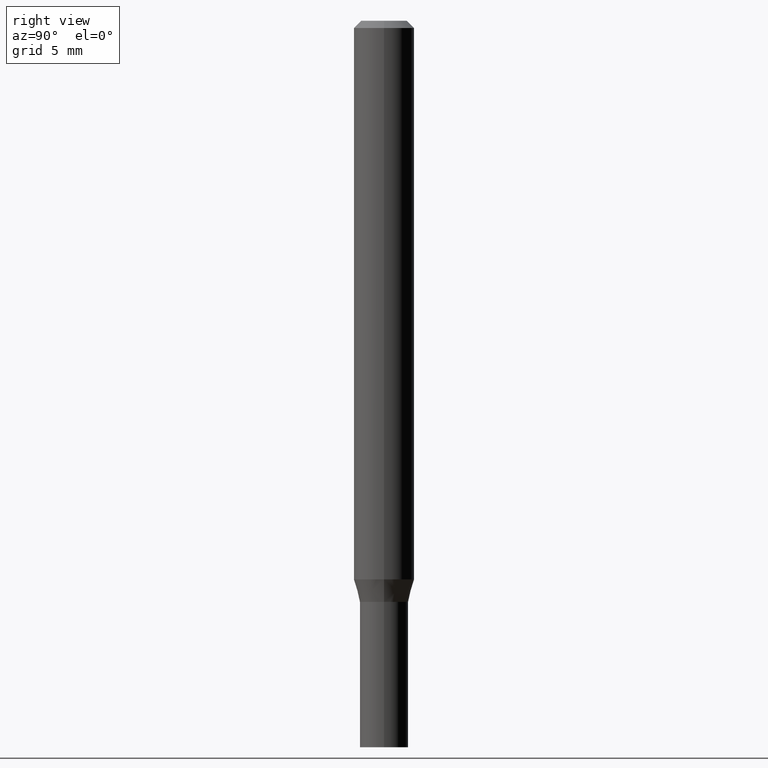
[diagram: clean part render]
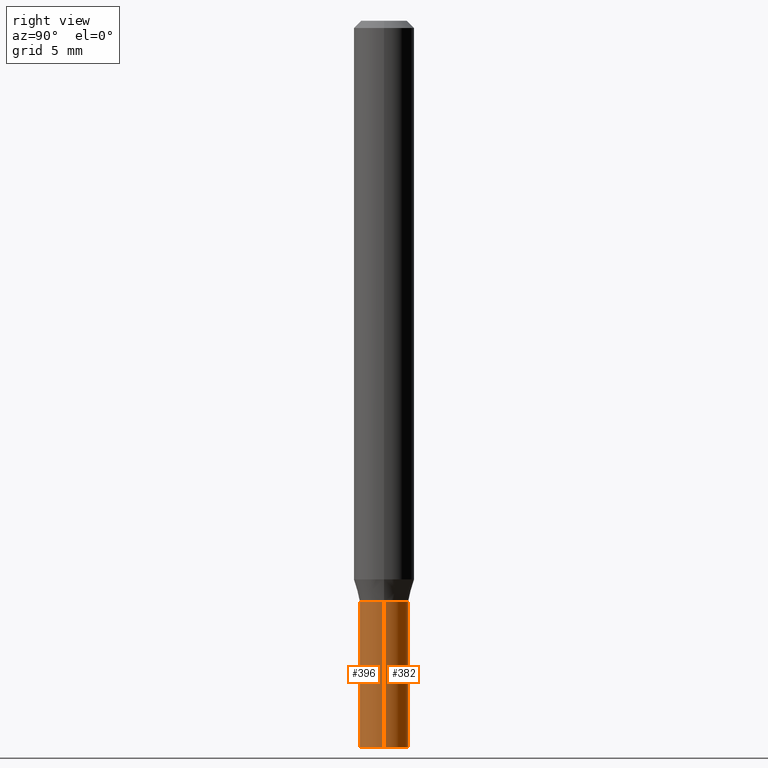
[diagram: same view with one multi-face feature highlighted, each face labeled with its STEP entity id]
A machine part, right view. The highlighted faces form ONE feature: a constant-radius fillet chain: 2 tangent blend faces with common blend radius 1.27 mm. The faces share edges in the B-rep.
Their STEP definitions:
[1] entity #382 (Cylinder):
#8 = VECTOR ( 'NONE', #232, 39.37007874015748143 ) ;
#11 = DIRECTION ( 'NONE',  ( -2.445468806185136877E-29, 3.491481338843145188E-15, 1.000000000000000000 ) ) ;
#19 = CARTESIAN_POINT ( 'NONE',  ( 0.05000000000000000278, -4.538925740496089139E-15, -1.200000000000000178 ) ) ;
#35 = VERTEX_POINT ( 'NONE', #153 ) ;
#46 = DIRECTION ( 'NONE',  ( -2.445468806185136597E-29, 3.491481338843145583E-15, 1.000000000000000000 ) ) ;
#48 = CARTESIAN_POINT ( 'NONE',  ( 2.934562567422164701E-29, -4.189777606611775804E-15, -1.200000000000000178 ) ) ;
#81 = DIRECTION ( 'NONE',  ( -2.445468806185136597E-29, 3.491481338843145583E-15, 1.000000000000000000 ) ) ;
#102 = VECTOR ( 'NONE', #11, 39.37007874015748143 ) ;
#117 = EDGE_CURVE ( 'NONE', #289, #455, #434, .T. ) ;
#125 = ORIENTED_EDGE ( 'NONE', *, *, #220, .F. ) ;
#145 = ORIENTED_EDGE ( 'NONE', *, *, #169, .T. ) ;
#152 = CIRCLE ( 'NONE', #165, 0.05000000000000000278 ) ;
#153 = CARTESIAN_POINT ( 'NONE',  ( 0.05000000000000000278, -5.586370142149032301E-15, -1.500000000000000222 ) ) ;
#165 = AXIS2_PLACEMENT_3D ( 'NONE', #411, #81, #336 ) ;
#169 = EDGE_CURVE ( 'NONE', #35, #289, #152, .T. ) ;
#173 = AXIS2_PLACEMENT_3D ( 'NONE', #48, #46, #202 ) ;
#202 = DIRECTION ( 'NONE',  ( 1.000000000000000000, -6.982962677686274599E-15, 0.000000000000000000 ) ) ;
#208 = EDGE_CURVE ( 'NONE', #388, #455, #334, .T. ) ;
#211 = DIRECTION ( 'NONE',  ( -2.445468806185136597E-29, 3.491481338843145583E-15, 1.000000000000000000 ) ) ;
#214 = CARTESIAN_POINT ( 'NONE',  ( 0.000000000000000000, 0.000000000000000000, 0.000000000000000000 ) ) ;
#220 = EDGE_CURVE ( 'NONE', #35, #388, #379, .T. ) ;
#221 = AXIS2_PLACEMENT_3D ( 'NONE', #214, #211, #309 ) ;
#232 = DIRECTION ( 'NONE',  ( -2.445468806185136877E-29, 3.491481338843145188E-15, 1.000000000000000000 ) ) ;
#262 = CARTESIAN_POINT ( 'NONE',  ( -0.05000000000000000278, 3.552713678800501127E-16, -2.459467545127453311E-30 ) ) ;
#289 = VERTEX_POINT ( 'NONE', #386 ) ;
#309 = DIRECTION ( 'NONE',  ( 1.000000000000000000, -6.982962677686267499E-15, 4.876176775795936353E-29 ) ) ;
#313 = FACE_OUTER_BOUND ( 'NONE', #362, .T. ) ;
#334 = CIRCLE ( 'NONE', #173, 0.05000000000000000278 ) ;
#336 = DIRECTION ( 'NONE',  ( 1.000000000000000000, -6.982962677686274599E-15, 0.000000000000000000 ) ) ;
#338 = CARTESIAN_POINT ( 'NONE',  ( 0.05000000000000000278, -3.491481338843133848E-16, 2.438088387897968247E-30 ) ) ;
#346 = ORIENTED_EDGE ( 'NONE', *, *, #208, .F. ) ;
#362 = EDGE_LOOP ( 'NONE', ( #145, #367, #346, #125 ) ) ;
#367 = ORIENTED_EDGE ( 'NONE', *, *, #117, .T. ) ;
#379 = LINE ( 'NONE', #338, #102 ) ;
#382 = ADVANCED_FACE ( 'NONE', ( #313 ), #457, .T. ) ;
#386 = CARTESIAN_POINT ( 'NONE',  ( -0.05000000000000000278, -4.358228439558196976E-15, -1.500000000000000222 ) ) ;
#388 = VERTEX_POINT ( 'NONE', #19 ) ;
#411 = CARTESIAN_POINT ( 'NONE',  ( 3.668203209277704895E-29, -5.237222008264718177E-15, -1.500000000000000222 ) ) ;
#424 = CARTESIAN_POINT ( 'NONE',  ( -0.05000000000000000278, -4.358228439558196976E-15, -1.200000000000000178 ) ) ;
#434 = LINE ( 'NONE', #262, #8 ) ;
#455 = VERTEX_POINT ( 'NONE', #424 ) ;
#457 = CYLINDRICAL_SURFACE ( 'NONE', #221, 0.05000000000000000278 ) ;
[2] entity #396 (Cylinder):
#2 = CIRCLE ( 'NONE', #265, 0.05000000000000000278 ) ;
#4 = EDGE_CURVE ( 'NONE', #289, #35, #378, .T. ) ;
#8 = VECTOR ( 'NONE', #232, 39.37007874015748143 ) ;
#11 = DIRECTION ( 'NONE',  ( -2.445468806185136877E-29, 3.491481338843145188E-15, 1.000000000000000000 ) ) ;
#19 = CARTESIAN_POINT ( 'NONE',  ( 0.05000000000000000278, -4.538925740496089139E-15, -1.200000000000000178 ) ) ;
#20 = EDGE_LOOP ( 'NONE', ( #23, #228, #280, #193 ) ) ;
#23 = ORIENTED_EDGE ( 'NONE', *, *, #117, .F. ) ;
#24 = DIRECTION ( 'NONE',  ( 1.000000000000000000, -6.982962677686267499E-15, 4.876176775795936353E-29 ) ) ;
#35 = VERTEX_POINT ( 'NONE', #153 ) ;
#102 = VECTOR ( 'NONE', #11, 39.37007874015748143 ) ;
#117 = EDGE_CURVE ( 'NONE', #289, #455, #434, .T. ) ;
#136 = CARTESIAN_POINT ( 'NONE',  ( 2.934562567422164701E-29, -4.189777606611775804E-15, -1.200000000000000178 ) ) ;
#138 = CYLINDRICAL_SURFACE ( 'NONE', #301, 0.05000000000000000278 ) ;
#149 = DIRECTION ( 'NONE',  ( -2.445468806185136597E-29, 3.491481338843145583E-15, 1.000000000000000000 ) ) ;
#153 = CARTESIAN_POINT ( 'NONE',  ( 0.05000000000000000278, -5.586370142149032301E-15, -1.500000000000000222 ) ) ;
#193 = ORIENTED_EDGE ( 'NONE', *, *, #332, .F. ) ;
#220 = EDGE_CURVE ( 'NONE', #35, #388, #379, .T. ) ;
#228 = ORIENTED_EDGE ( 'NONE', *, *, #4, .T. ) ;
#232 = DIRECTION ( 'NONE',  ( -2.445468806185136877E-29, 3.491481338843145188E-15, 1.000000000000000000 ) ) ;
#241 = AXIS2_PLACEMENT_3D ( 'NONE', #405, #149, #264 ) ;
#244 = DIRECTION ( 'NONE',  ( -2.445468806185136597E-29, 3.491481338843145583E-15, 1.000000000000000000 ) ) ;
#247 = DIRECTION ( 'NONE',  ( 1.000000000000000000, -6.982962677686274599E-15, 0.000000000000000000 ) ) ;
#262 = CARTESIAN_POINT ( 'NONE',  ( -0.05000000000000000278, 3.552713678800501127E-16, -2.459467545127453311E-30 ) ) ;
#264 = DIRECTION ( 'NONE',  ( 1.000000000000000000, -6.982962677686274599E-15, 0.000000000000000000 ) ) ;
#265 = AXIS2_PLACEMENT_3D ( 'NONE', #136, #244, #247 ) ;
#279 = DIRECTION ( 'NONE',  ( -2.445468806185136597E-29, 3.491481338843145583E-15, 1.000000000000000000 ) ) ;
#280 = ORIENTED_EDGE ( 'NONE', *, *, #220, .T. ) ;
#289 = VERTEX_POINT ( 'NONE', #386 ) ;
#301 = AXIS2_PLACEMENT_3D ( 'NONE', #321, #279, #24 ) ;
#321 = CARTESIAN_POINT ( 'NONE',  ( 0.000000000000000000, 0.000000000000000000, 0.000000000000000000 ) ) ;
#332 = EDGE_CURVE ( 'NONE', #455, #388, #2, .T. ) ;
#338 = CARTESIAN_POINT ( 'NONE',  ( 0.05000000000000000278, -3.491481338843133848E-16, 2.438088387897968247E-30 ) ) ;
#378 = CIRCLE ( 'NONE', #241, 0.05000000000000000278 ) ;
#379 = LINE ( 'NONE', #338, #102 ) ;
#386 = CARTESIAN_POINT ( 'NONE',  ( -0.05000000000000000278, -4.358228439558196976E-15, -1.500000000000000222 ) ) ;
#388 = VERTEX_POINT ( 'NONE', #19 ) ;
#396 = ADVANCED_FACE ( 'NONE', ( #454 ), #138, .T. ) ;
#405 = CARTESIAN_POINT ( 'NONE',  ( 3.668203209277704895E-29, -5.237222008264718177E-15, -1.500000000000000222 ) ) ;
#424 = CARTESIAN_POINT ( 'NONE',  ( -0.05000000000000000278, -4.358228439558196976E-15, -1.200000000000000178 ) ) ;
#434 = LINE ( 'NONE', #262, #8 ) ;
#454 = FACE_OUTER_BOUND ( 'NONE', #20, .T. ) ;
#455 = VERTEX_POINT ( 'NONE', #424 ) ;